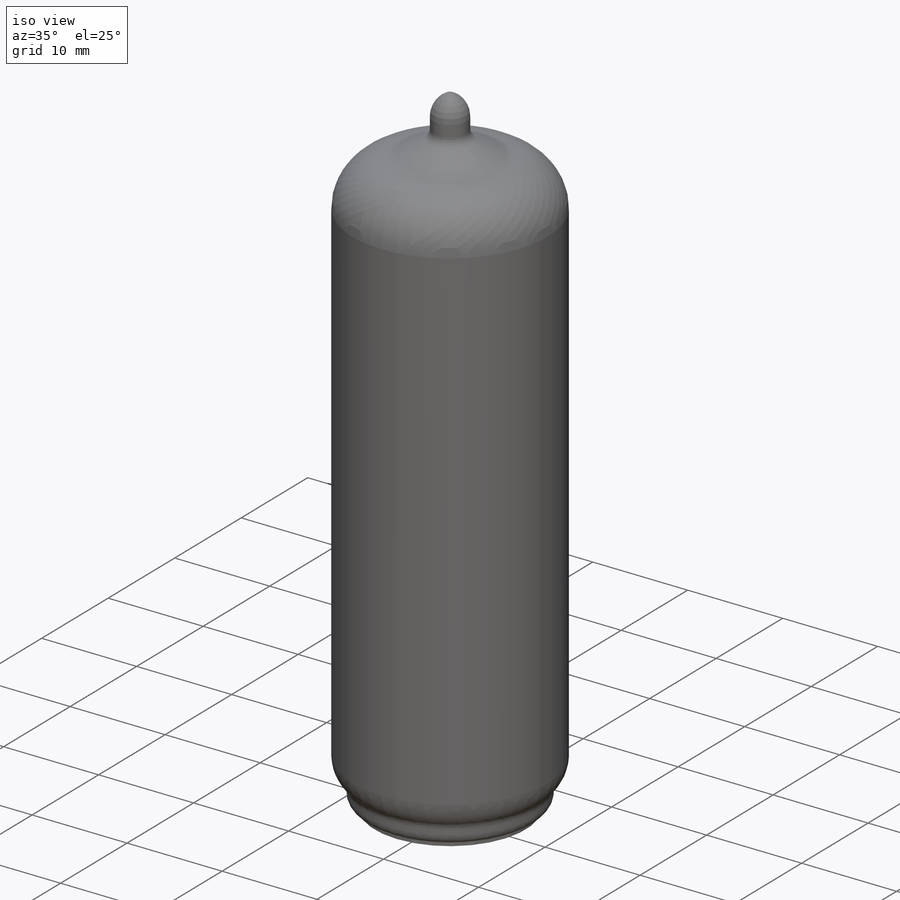
[diagram: iso view]
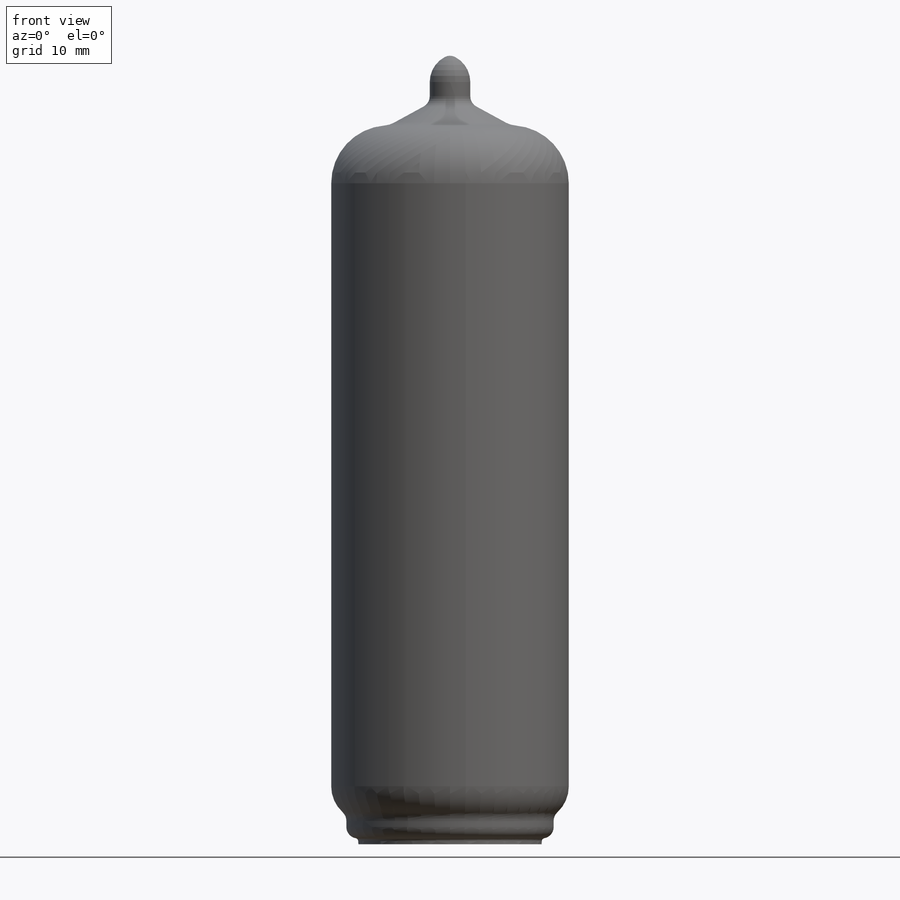
[diagram: front view]
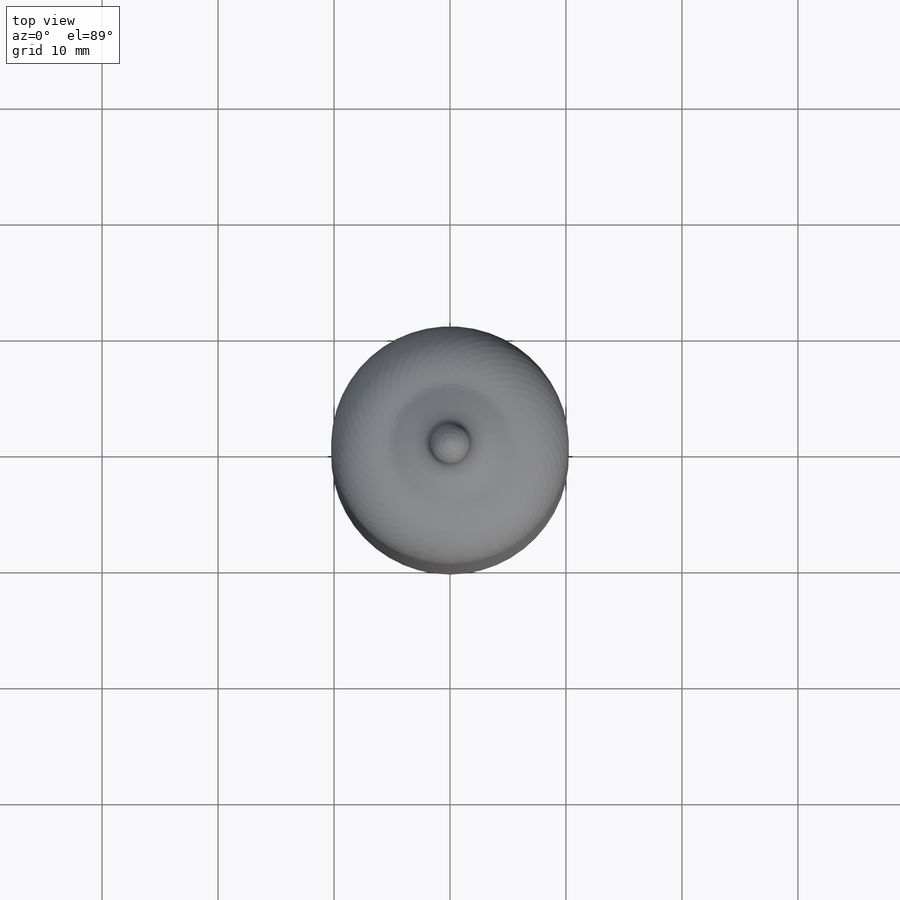
[diagram: top view]
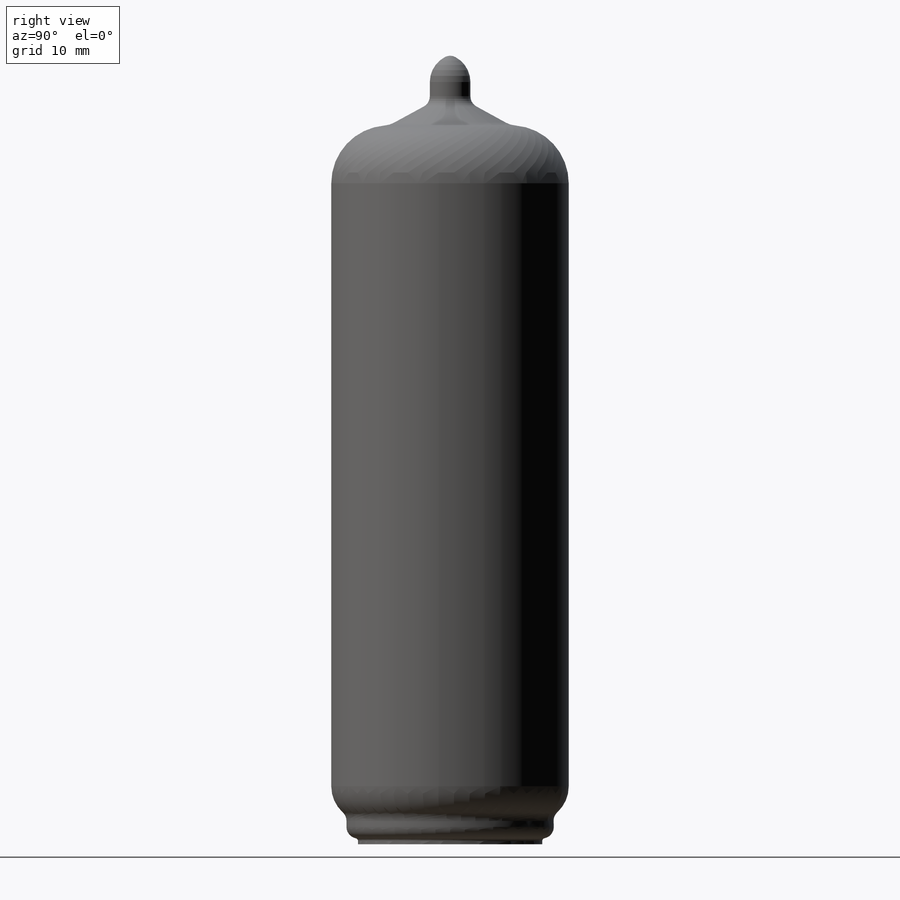
[diagram: right view]
SOLIDWORKS PART (.sldprt)
format: sldprt  version: not decoded by parser v0  size: 380,928 bytes
history: native  units: mm
features: sketch x4, revolve x3, fillet x2, material x1, plane x1, pattern_circular x1 (+12 scaffold rows collapsed)
feature tree (24):
  scaffold x12  (default folders/planes/origin — collapsed)
  material  "Glass"
  sketch  "Sketch1"  dims[c1.D1=5.0mm c1.D2=2.0mm c1.D11=1.0mm c2.D2=62.0mm c2.D3=19.0mm c2.D4=20.5mm c2.D5=5.0mm c2.D6=2.5mm c2.D7=2.5mm c2.D8=10.5mm c2.D9=57.0mm c2.D10=3.5mm c2.D12=7.5mm c3.D7=3.5mm c3.D1=360.0deg c3.D3=0.8mm c3.D4=1.0mm c4.D7=0.0mm]
  sketch  "Sketch2"  dims[c1.D3=~1.282628mm c1.D1=0.8mm c1.D2=0.25mm c2.D3=3.5mm]
  revolve  "Revolve1"  Angle=360deg
  sketch  "Sketch3"  dims[c1.D1=1.0mm c1.D2=0.25mm c2.D1=0.5mm c2.D2=2.5mm]
  revolve  "Revolve2"  Angle=360deg
  fillet  "Fillet1"  Radius=1mm
  fillet  "Fillet2"  Radius=1mm
  plane  "Plane1"
  sketch  "Sketch4"  dims[c1.D2=1.5mm c1.D6=0.4mm c1.D1=6.0mm c1.D3=0.8mm c1.D4=5.0mm c1.D5=1.4mm c2.D6=~1.077717mm c2.D7=~1.066108mm]
  revolve  "Revolve3"  Angle=360deg
  pattern_circular  "CirPattern1"  Count=9 Angle=36deg
decode coverage: 10 of 10 modeling features carry decoded parameters
note: ~ marks probable driven/reference dimensions
note: suppression state not decoded; provenance and decode notes live in map.json
